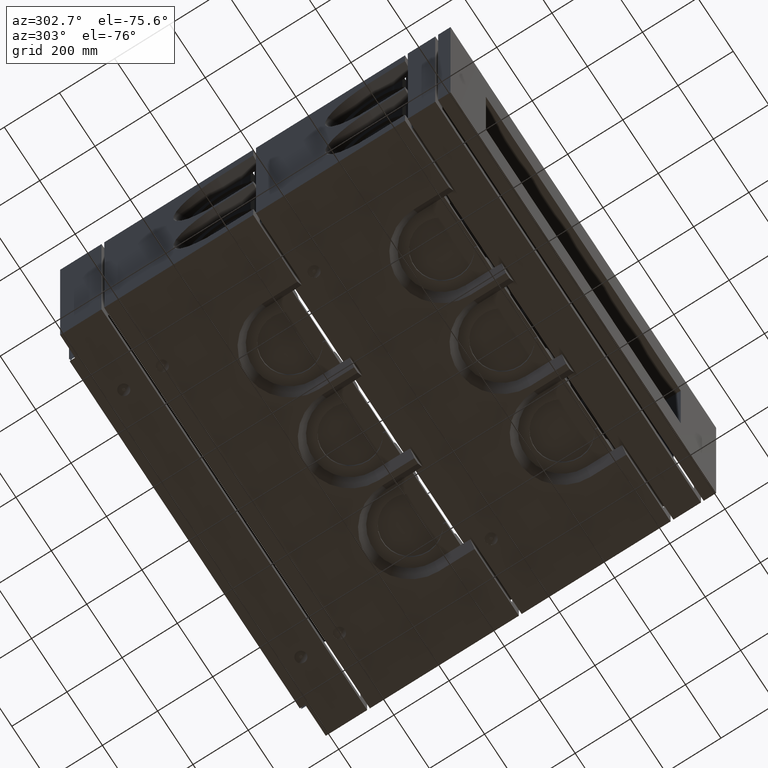
[diagram: clean part render]
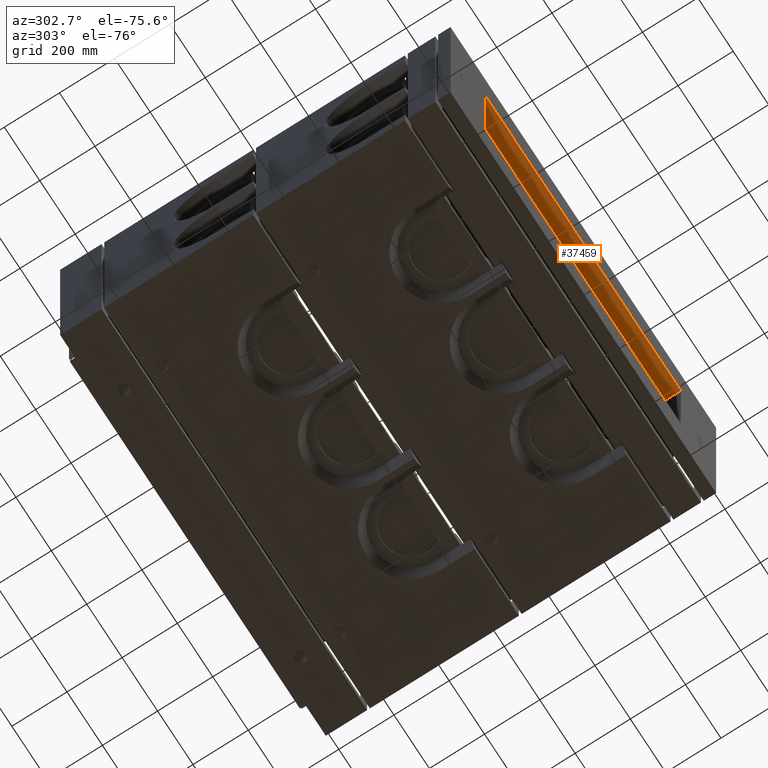
[diagram: same view with one face highlighted and labeled with its STEP entity id]
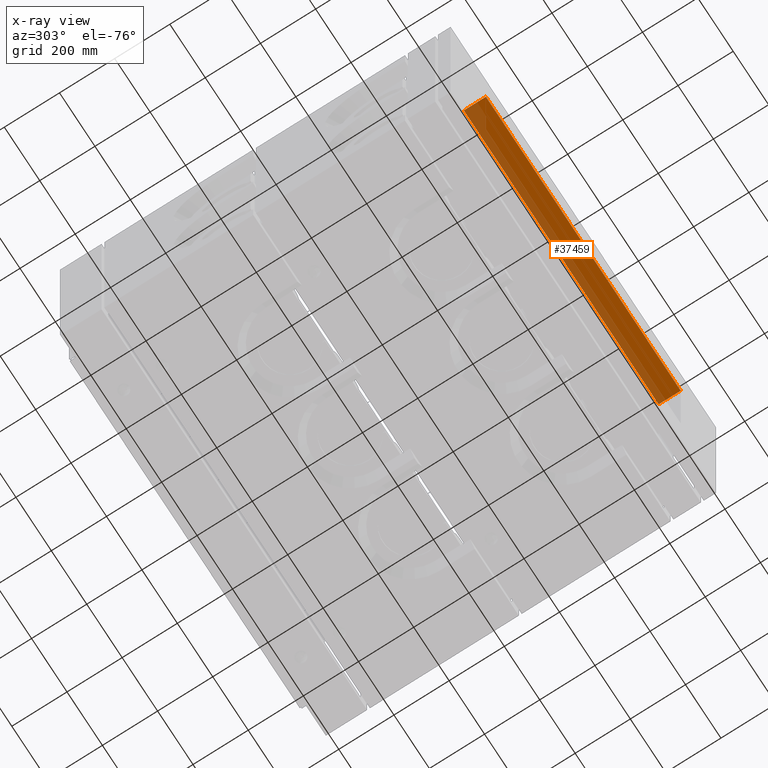
[diagram: x-ray of the same camera — body ghosted, the highlighted face saturated]
A machine part, auxiliary view. The second image highlights one B-rep face of the part: STEP entity #37459.
The next image is the same camera in x-ray: the body ghosted, the highlighted face saturated — about 32% of this face is hidden behind the body in this view.
In plain terms, the highlighted planar face has unit normal (-0, 0, 1).
Its self-contained STEP definition (entity closure, byte-faithful):
#2359 = ORIENTED_EDGE ( 'NONE', *, *, #33058, .F. ) ;
#3260 = LINE ( 'NONE', #14499, #20907 ) ;
#3559 = VECTOR ( 'NONE', #12876, 1000.000000000000000 ) ;
#3659 = ORIENTED_EDGE ( 'NONE', *, *, #7940, .T. ) ;
#4742 = AXIS2_PLACEMENT_3D ( 'NONE', #11187, #22761, #31589 ) ;
#7589 = LINE ( 'NONE', #9984, #19615 ) ;
#7940 = EDGE_CURVE ( 'NONE', #32939, #34297, #3260, .T. ) ;
#9984 = CARTESIAN_POINT ( 'NONE',  ( -550.0000000000000000, 0.0000000000000000000, 200.0000000000000000 ) ) ;
#11187 = CARTESIAN_POINT ( 'NONE',  ( -550.0000000000000000, 0.0000000000000000000, 200.0000000000000000 ) ) ;
#12876 = DIRECTION ( 'NONE',  ( -0.0000000000000000000, 1.000000000000000000, -0.0000000000000000000 ) ) ;
#14145 = PLANE ( 'NONE',  #4742 ) ;
#14499 = CARTESIAN_POINT ( 'NONE',  ( -550.0000000000000000, 80.00000000000000000, 200.0000000000000000 ) ) ;
#15845 = EDGE_CURVE ( 'NONE', #28789, #34297, #26699, .T. ) ;
#16072 = CARTESIAN_POINT ( 'NONE',  ( 550.0000000000000000, 0.0000000000000000000, 200.0000000000000000 ) ) ;
#16141 = CARTESIAN_POINT ( 'NONE',  ( -550.0000000000000000, 0.0000000000000000000, 200.0000000000000000 ) ) ;
#18467 = LINE ( 'NONE', #16141, #24450 ) ;
#18508 = CARTESIAN_POINT ( 'NONE',  ( 550.0000000000000000, 80.00000000000000000, 200.0000000000000000 ) ) ;
#19157 = DIRECTION ( 'NONE',  ( 1.000000000000000000, 0.0000000000000000000, 0.0000000000000000000 ) ) ;
#19236 = DIRECTION ( 'NONE',  ( -0.0000000000000000000, 1.000000000000000000, -0.0000000000000000000 ) ) ;
#19615 = VECTOR ( 'NONE', #19157, 1000.000000000000000 ) ;
#19953 = FACE_OUTER_BOUND ( 'NONE', #23827, .T. ) ;
#20907 = VECTOR ( 'NONE', #35158, 1000.000000000000000 ) ;
#22761 = DIRECTION ( 'NONE',  ( -0.0000000000000000000, 0.0000000000000000000, 1.000000000000000000 ) ) ;
#23827 = EDGE_LOOP ( 'NONE', ( #3659, #36734, #2359, #26004 ) ) ;
#24450 = VECTOR ( 'NONE', #19236, 1000.000000000000000 ) ;
#25668 = VERTEX_POINT ( 'NONE', #33709 ) ;
#26004 = ORIENTED_EDGE ( 'NONE', *, *, #37978, .T. ) ;
#26699 = LINE ( 'NONE', #16072, #3559 ) ;
#28789 = VERTEX_POINT ( 'NONE', #34501 ) ;
#31589 = DIRECTION ( 'NONE',  ( 1.000000000000000000, 0.0000000000000000000, 0.0000000000000000000 ) ) ;
#32939 = VERTEX_POINT ( 'NONE', #38355 ) ;
#33058 = EDGE_CURVE ( 'NONE', #25668, #28789, #7589, .T. ) ;
#33709 = CARTESIAN_POINT ( 'NONE',  ( -550.0000000000000000, 0.0000000000000000000, 200.0000000000000000 ) ) ;
#34297 = VERTEX_POINT ( 'NONE', #18508 ) ;
#34501 = CARTESIAN_POINT ( 'NONE',  ( 550.0000000000000000, 0.0000000000000000000, 200.0000000000000568 ) ) ;
#35158 = DIRECTION ( 'NONE',  ( 1.000000000000000000, 0.0000000000000000000, 0.0000000000000000000 ) ) ;
#36734 = ORIENTED_EDGE ( 'NONE', *, *, #15845, .F. ) ;
#37459 = ADVANCED_FACE ( 'NONE', ( #19953 ), #14145, .F. ) ;
#37978 = EDGE_CURVE ( 'NONE', #25668, #32939, #18467, .T. ) ;
#38355 = CARTESIAN_POINT ( 'NONE',  ( -550.0000000000000000, 80.00000000000000000, 200.0000000000000568 ) ) ;